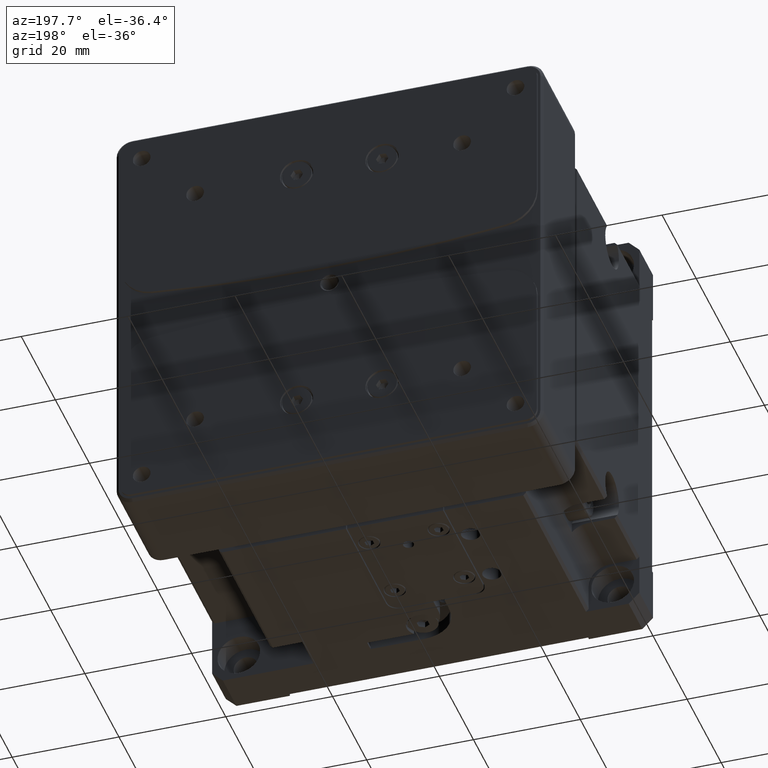
[diagram: clean part render]
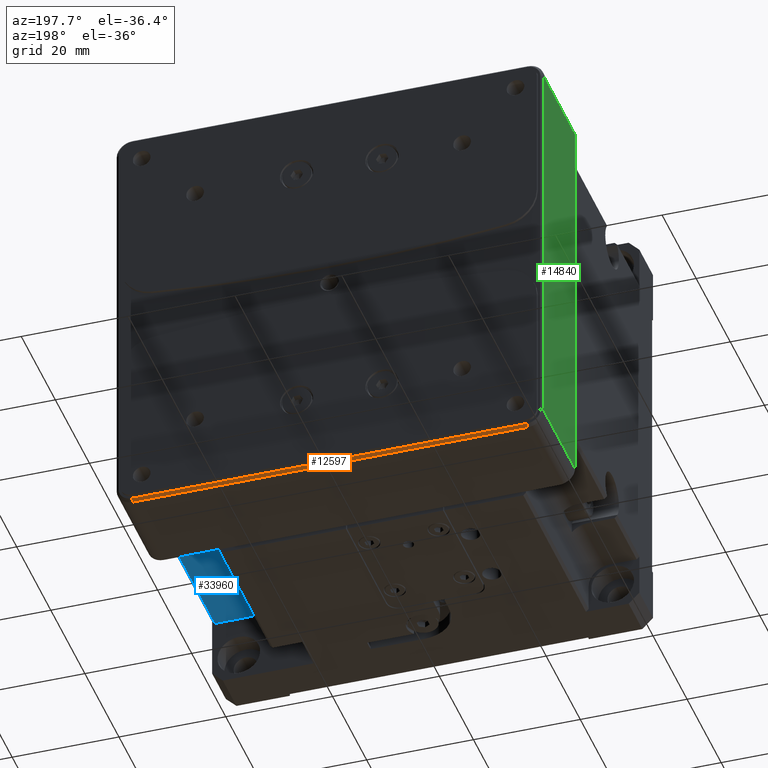
[diagram: same view with three faces highlighted in distinct colors, each labeled with its STEP entity id]
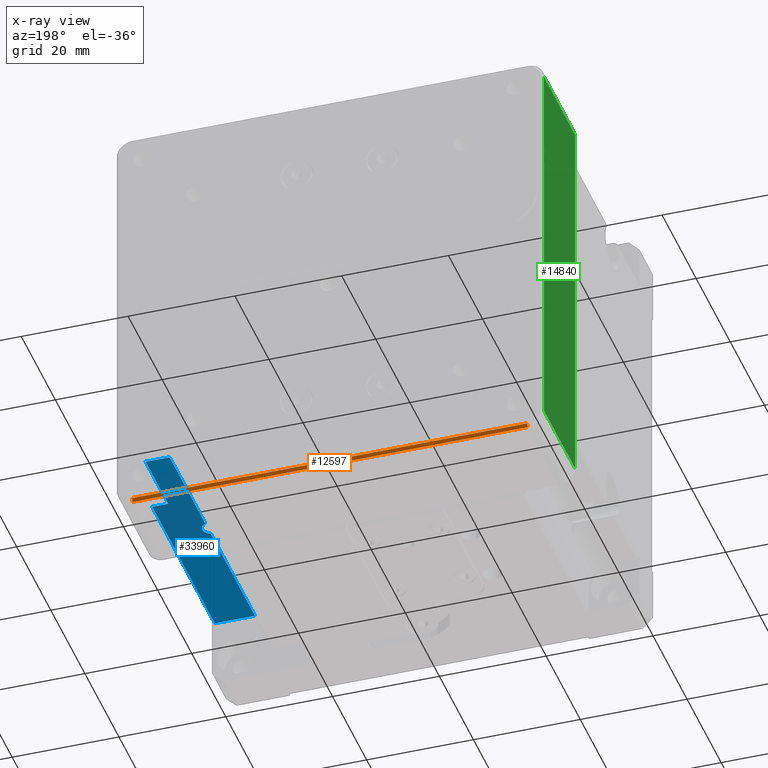
[diagram: x-ray of the same camera — body ghosted, the three highlighted faces saturated]
A machine part, auxiliary view with three faces highlighted in distinct colors.
The next image is the same camera in x-ray (body ghosted, the three faces saturated) — at least one of them is partly hidden behind the body in this view.
Their STEP definitions:

[orange] entity #12597 — the highlighted planar face has unit normal (0, -0.7071, 0.7071).
#762 = EDGE_CURVE ( 'NONE', #11852, #19042, #13240, .T. ) ;
#1415 = CARTESIAN_POINT ( 'NONE',  ( -6.852157730108385656E-15, 64.50000000000000000, -39.49999999999998579 ) ) ;
#2022 = CARTESIAN_POINT ( 'NONE',  ( 39.99999999999998579, 64.00000000000000000, -40.00000000000000000 ) ) ;
#3097 = EDGE_CURVE ( 'NONE', #9895, #35285, #28018, .T. ) ;
#3140 = CARTESIAN_POINT ( 'NONE',  ( -37.00000000000001421, -498896.0000000012224, -499000.0000000000582 ) ) ;
#5284 = DIRECTION ( 'NONE',  ( 0.000000000000000000, -0.7071067811865425767, -0.7071067811865525687 ) ) ;
#8007 = VECTOR ( 'NONE', #13546, 1000.000000000000000 ) ;
#8873 = ORIENTED_EDGE ( 'NONE', *, *, #3097, .F. ) ;
#9113 = ORIENTED_EDGE ( 'NONE', *, *, #762, .F. ) ;
#9895 = VERTEX_POINT ( 'NONE', #10170 ) ;
#10170 = CARTESIAN_POINT ( 'NONE',  ( -37.00000000000001421, 64.49999999999603517, -39.49999999999118216 ) ) ;
#10977 = CARTESIAN_POINT ( 'NONE',  ( 36.99999999999998579, 64.50000000000716227, -39.49999999999118216 ) ) ;
#11852 = VERTEX_POINT ( 'NONE', #17275 ) ;
#12597 = ADVANCED_FACE ( 'NONE', ( #15707 ), #35777, .F. ) ;
#13240 = LINE ( 'NONE', #24709, #32464 ) ;
#13546 = DIRECTION ( 'NONE',  ( -0.000000000000000000, -0.7071067811865483499, -0.7071067811865466846 ) ) ;
#14472 = ORIENTED_EDGE ( 'NONE', *, *, #15410, .T. ) ;
#15410 = EDGE_CURVE ( 'NONE', #9895, #19042, #34113, .T. ) ;
#15707 = FACE_OUTER_BOUND ( 'NONE', #35716, .T. ) ;
#17275 = CARTESIAN_POINT ( 'NONE',  ( 36.99999999999998579, 63.99999999997692157, -40.00000000000512301 ) ) ;
#17778 = VECTOR ( 'NONE', #32191, 1000.000000000000000 ) ;
#19042 = VERTEX_POINT ( 'NONE', #10977 ) ;
#19385 = DIRECTION ( 'NONE',  ( 1.226634733346690929E-16, -0.7071067811865525687, 0.7071067811865425767 ) ) ;
#20400 = AXIS2_PLACEMENT_3D ( 'NONE', #1415, #19385, #5284 ) ;
#20746 = ORIENTED_EDGE ( 'NONE', *, *, #30100, .T. ) ;
#21740 = DIRECTION ( 'NONE',  ( -1.000000000000000000, -0.000000000000000000, 1.734723475976807094E-16 ) ) ;
#24578 = LINE ( 'NONE', #2022, #33531 ) ;
#24709 = CARTESIAN_POINT ( 'NONE',  ( 36.99999999999998579, -498895.9999999988941, -499000.0000000000000 ) ) ;
#28018 = LINE ( 'NONE', #3140, #8007 ) ;
#28635 = DIRECTION ( 'NONE',  ( 0.000000000000000000, 0.7071067811865466846, 0.7071067811865483499 ) ) ;
#30100 = EDGE_CURVE ( 'NONE', #11852, #35285, #24578, .T. ) ;
#32191 = DIRECTION ( 'NONE',  ( 1.000000000000000000, 0.000000000000000000, 0.000000000000000000 ) ) ;
#32464 = VECTOR ( 'NONE', #28635, 1000.000000000000000 ) ;
#32694 = CARTESIAN_POINT ( 'NONE',  ( -37.00000000000001421, 64.00000000000534328, -39.99999999999089795 ) ) ;
#33531 = VECTOR ( 'NONE', #21740, 1000.000000000000000 ) ;
#34113 = LINE ( 'NONE', #36574, #17778 ) ;
#35285 = VERTEX_POINT ( 'NONE', #32694 ) ;
#35716 = EDGE_LOOP ( 'NONE', ( #8873, #14472, #9113, #20746 ) ) ;
#35777 = PLANE ( 'NONE',  #20400 ) ;
#36574 = CARTESIAN_POINT ( 'NONE',  ( 0.000000000000000000, 64.50000000000000000, -39.49999999999384670 ) ) ;

[blue] entity #33960 — the highlighted planar face has unit normal (-0, 0, 1).
#425 = CARTESIAN_POINT ( 'NONE',  ( 39.50000000000004263, 149.0617922072698889, -26.99999999999999645 ) ) ;
#658 = VECTOR ( 'NONE', #23516, 1000.000000000000000 ) ;
#1431 = CIRCLE ( 'NONE', #27825, 1.750000000000001554 ) ;
#1459 = PLANE ( 'NONE',  #24868 ) ;
#1820 = VERTEX_POINT ( 'NONE', #5589 ) ;
#2926 = DIRECTION ( 'NONE',  ( 0.000000000000000000, 1.000000000000000000, -0.000000000000000000 ) ) ;
#2927 = EDGE_CURVE ( 'NONE', #12860, #15254, #7159, .T. ) ;
#3361 = VECTOR ( 'NONE', #8299, 1000.000000000000000 ) ;
#3567 = DIRECTION ( 'NONE',  ( -2.668805347656626678E-16, 0.000000000000000000, 1.000000000000000000 ) ) ;
#3962 = AXIS2_PLACEMENT_3D ( 'NONE', #5636, #11473, #28573 ) ;
#4182 = VECTOR ( 'NONE', #2926, 1000.000000000000000 ) ;
#4377 = EDGE_CURVE ( 'NONE', #8654, #10647, #8157, .T. ) ;
#5589 = CARTESIAN_POINT ( 'NONE',  ( 32.00000000000003553, 8.000000000000005329, -27.00000000000000000 ) ) ;
#5636 = CARTESIAN_POINT ( 'NONE',  ( 31.30000000000000071, 35.50000000000001421, -26.99999999999999645 ) ) ;
#6667 = VERTEX_POINT ( 'NONE', #31321 ) ;
#7001 = VERTEX_POINT ( 'NONE', #19991 ) ;
#7159 = LINE ( 'NONE', #35511, #16409 ) ;
#8157 = CIRCLE ( 'NONE', #3962, 1.750000000000001554 ) ;
#8299 = DIRECTION ( 'NONE',  ( -0.000000000000000000, -1.000000000000000000, 0.000000000000000000 ) ) ;
#8654 = VERTEX_POINT ( 'NONE', #19215 ) ;
#8715 = LINE ( 'NONE', #25826, #25892 ) ;
#8845 = CARTESIAN_POINT ( 'NONE',  ( 27.00000000000004619, 149.0617922072698889, -27.00000000000000000 ) ) ;
#9032 = FACE_OUTER_BOUND ( 'NONE', #27047, .T. ) ;
#10460 = VECTOR ( 'NONE', #28714, 1000.000000000000000 ) ;
#10647 = VERTEX_POINT ( 'NONE', #12685 ) ;
#11158 = DIRECTION ( 'NONE',  ( -1.000000000000000000, 0.000000000000000000, 0.000000000000000000 ) ) ;
#11473 = DIRECTION ( 'NONE',  ( -0.000000000000000000, -0.000000000000000000, -1.000000000000000000 ) ) ;
#11549 = DIRECTION ( 'NONE',  ( 1.000000000000000000, 0.000000000000000000, 0.000000000000000000 ) ) ;
#12254 = EDGE_CURVE ( 'NONE', #15254, #27824, #23229, .T. ) ;
#12685 = CARTESIAN_POINT ( 'NONE',  ( 33.05000000000000426, 35.50000000000001421, -26.99999999999999645 ) ) ;
#12860 = VERTEX_POINT ( 'NONE', #30055 ) ;
#13421 = DIRECTION ( 'NONE',  ( -0.000000000000000000, -0.000000000000000000, -1.000000000000000000 ) ) ;
#14058 = EDGE_CURVE ( 'NONE', #1820, #6667, #8715, .T. ) ;
#14262 = LINE ( 'NONE', #30978, #10460 ) ;
#14511 = CARTESIAN_POINT ( 'NONE',  ( 36.50000000000000000, 57.99999999999999289, -26.99999999999999645 ) ) ;
#15254 = VERTEX_POINT ( 'NONE', #19305 ) ;
#15443 = DIRECTION ( 'NONE',  ( -1.000000000000000000, -0.000000000000000000, -2.668805347656626678E-16 ) ) ;
#16321 = VERTEX_POINT ( 'NONE', #29469 ) ;
#16409 = VECTOR ( 'NONE', #15443, 1000.000000000000000 ) ;
#16616 = CARTESIAN_POINT ( 'NONE',  ( 31.30000000000000071, 35.50000000000001421, -26.99999999999999645 ) ) ;
#16960 = CARTESIAN_POINT ( 'NONE',  ( 32.00000000000003553, 149.0617922072698889, -27.00000000000000000 ) ) ;
#17706 = EDGE_CURVE ( 'NONE', #10647, #7001, #1431, .T. ) ;
#18155 = ORIENTED_EDGE ( 'NONE', *, *, #25789, .F. ) ;
#18720 = EDGE_CURVE ( 'NONE', #7001, #1820, #14262, .T. ) ;
#18900 = VECTOR ( 'NONE', #32968, 1000.000000000000000 ) ;
#19215 = CARTESIAN_POINT ( 'NONE',  ( 32.00000000000004263, 37.10390149323454523, -26.99999999999999645 ) ) ;
#19255 = CARTESIAN_POINT ( 'NONE',  ( 27.00000000000004619, 57.99999999999999289, -27.00000000000000000 ) ) ;
#19305 = CARTESIAN_POINT ( 'NONE',  ( 36.49999999999999289, 44.75000000000001421, -26.99999999999999645 ) ) ;
#19965 = ORIENTED_EDGE ( 'NONE', *, *, #26295, .F. ) ;
#19991 = CARTESIAN_POINT ( 'NONE',  ( 32.00000000000003553, 33.89609850676547609, -26.99999999999999645 ) ) ;
#23229 = LINE ( 'NONE', #31122, #4182 ) ;
#23337 = ORIENTED_EDGE ( 'NONE', *, *, #14058, .F. ) ;
#23516 = DIRECTION ( 'NONE',  ( 0.000000000000000000, 1.000000000000000000, -0.000000000000000000 ) ) ;
#24040 = ORIENTED_EDGE ( 'NONE', *, *, #2927, .F. ) ;
#24868 = AXIS2_PLACEMENT_3D ( 'NONE', #8845, #3567, #28768 ) ;
#25572 = ORIENTED_EDGE ( 'NONE', *, *, #4377, .F. ) ;
#25789 = EDGE_CURVE ( 'NONE', #27824, #16321, #36336, .T. ) ;
#25826 = CARTESIAN_POINT ( 'NONE',  ( 0.000000000000000000, 8.000000000000000000, -27.00000000000000000 ) ) ;
#25892 = VECTOR ( 'NONE', #11549, 1000.000000000000000 ) ;
#26155 = LINE ( 'NONE', #425, #658 ) ;
#26295 = EDGE_CURVE ( 'NONE', #16321, #8654, #30659, .T. ) ;
#27047 = EDGE_LOOP ( 'NONE', ( #23337, #30311, #27669, #25572, #19965, #18155, #30160, #24040, #29675 ) ) ;
#27669 = ORIENTED_EDGE ( 'NONE', *, *, #17706, .F. ) ;
#27824 = VERTEX_POINT ( 'NONE', #14511 ) ;
#27825 = AXIS2_PLACEMENT_3D ( 'NONE', #16616, #13421, #11158 ) ;
#28573 = DIRECTION ( 'NONE',  ( -1.000000000000000000, 0.000000000000000000, 0.000000000000000000 ) ) ;
#28714 = DIRECTION ( 'NONE',  ( -0.000000000000000000, -1.000000000000000000, 0.000000000000000000 ) ) ;
#28768 = DIRECTION ( 'NONE',  ( 1.000000000000000000, 0.000000000000000000, 2.668805347656626678E-16 ) ) ;
#29469 = CARTESIAN_POINT ( 'NONE',  ( 32.00000000000003553, 57.99999999999999289, -26.99999999999999645 ) ) ;
#29675 = ORIENTED_EDGE ( 'NONE', *, *, #36437, .F. ) ;
#30055 = CARTESIAN_POINT ( 'NONE',  ( 39.50000000000004263, 44.75000000000001421, -26.99999999999999645 ) ) ;
#30160 = ORIENTED_EDGE ( 'NONE', *, *, #12254, .F. ) ;
#30311 = ORIENTED_EDGE ( 'NONE', *, *, #18720, .F. ) ;
#30659 = LINE ( 'NONE', #16960, #3361 ) ;
#30978 = CARTESIAN_POINT ( 'NONE',  ( 32.00000000000003553, 149.0617922072698889, -27.00000000000000000 ) ) ;
#31122 = CARTESIAN_POINT ( 'NONE',  ( 36.49999999999999289, 149.0617922072698889, -26.99999999999999645 ) ) ;
#31321 = CARTESIAN_POINT ( 'NONE',  ( 39.50000000000004974, 8.000000000000005329, -26.99999999999999645 ) ) ;
#32968 = DIRECTION ( 'NONE',  ( -1.000000000000000000, -0.000000000000000000, -2.668805347656626678E-16 ) ) ;
#33960 = ADVANCED_FACE ( 'NONE', ( #9032 ), #1459, .F. ) ;
#35511 = CARTESIAN_POINT ( 'NONE',  ( 27.00000000000004619, 44.75000000000001421, -27.00000000000000000 ) ) ;
#36336 = LINE ( 'NONE', #19255, #18900 ) ;
#36437 = EDGE_CURVE ( 'NONE', #6667, #12860, #26155, .T. ) ;

[green] entity #14840 — the highlighted planar face has unit normal (1, 0, -0).
#979 = VERTEX_POINT ( 'NONE', #35338 ) ;
#4244 = VECTOR ( 'NONE', #15983, 1000.000000000000000 ) ;
#4329 = FACE_OUTER_BOUND ( 'NONE', #26169, .T. ) ;
#4424 = DIRECTION ( 'NONE',  ( -0.000000000000000000, 1.000000000000000000, -0.000000000000000000 ) ) ;
#6034 = VECTOR ( 'NONE', #13275, 1000.000000000000000 ) ;
#7699 = DIRECTION ( 'NONE',  ( 1.000000000000000000, 0.000000000000000000, -1.734723475976807094E-16 ) ) ;
#8005 = LINE ( 'NONE', #22645, #6034 ) ;
#8321 = ORIENTED_EDGE ( 'NONE', *, *, #15831, .T. ) ;
#8506 = CARTESIAN_POINT ( 'NONE',  ( -40.00000000000001421, 45.75000000000001421, -36.99999999999998579 ) ) ;
#8796 = ORIENTED_EDGE ( 'NONE', *, *, #25738, .F. ) ;
#11288 = ORIENTED_EDGE ( 'NONE', *, *, #13331, .F. ) ;
#13112 = EDGE_CURVE ( 'NONE', #979, #36219, #16163, .T. ) ;
#13275 = DIRECTION ( 'NONE',  ( 0.000000000000000000, -1.000000000000000000, 0.000000000000000000 ) ) ;
#13331 = EDGE_CURVE ( 'NONE', #36219, #14953, #8005, .T. ) ;
#14142 = LINE ( 'NONE', #17519, #34565 ) ;
#14707 = AXIS2_PLACEMENT_3D ( 'NONE', #36429, #7699, #24802 ) ;
#14840 = ADVANCED_FACE ( 'NONE', ( #4329 ), #30800, .F. ) ;
#14953 = VERTEX_POINT ( 'NONE', #19899 ) ;
#15831 = EDGE_CURVE ( 'NONE', #32220, #14953, #14142, .T. ) ;
#15983 = DIRECTION ( 'NONE',  ( 1.734723475976807094E-16, -0.000000000000000000, 1.000000000000000000 ) ) ;
#16163 = LINE ( 'NONE', #30605, #4244 ) ;
#17519 = CARTESIAN_POINT ( 'NONE',  ( -40.00000000000001421, 45.75000000000000711, 0.000000000000000000 ) ) ;
#19899 = CARTESIAN_POINT ( 'NONE',  ( -40.00000000000000711, 45.75000000000001421, 37.00000000000001421 ) ) ;
#21692 = CARTESIAN_POINT ( 'NONE',  ( -40.00000000000001421, 64.50000000000000000, -36.99999999999998579 ) ) ;
#22645 = CARTESIAN_POINT ( 'NONE',  ( -40.00000000000000000, 64.50000000000000000, 37.00000000000001421 ) ) ;
#24096 = ORIENTED_EDGE ( 'NONE', *, *, #13112, .F. ) ;
#24532 = LINE ( 'NONE', #21692, #33897 ) ;
#24802 = DIRECTION ( 'NONE',  ( -1.734723475976807094E-16, 0.000000000000000000, -1.000000000000000000 ) ) ;
#25738 = EDGE_CURVE ( 'NONE', #32220, #979, #24532, .T. ) ;
#26169 = EDGE_LOOP ( 'NONE', ( #8796, #8321, #11288, #24096 ) ) ;
#28969 = DIRECTION ( 'NONE',  ( 0.000000000000000000, -0.000000000000000000, 1.000000000000000000 ) ) ;
#30605 = CARTESIAN_POINT ( 'NONE',  ( -40.00000000000001421, 64.00000000000000000, -39.99999999999998579 ) ) ;
#30800 = PLANE ( 'NONE',  #14707 ) ;
#32220 = VERTEX_POINT ( 'NONE', #8506 ) ;
#33664 = CARTESIAN_POINT ( 'NONE',  ( -40.00000000000000711, 64.00000000000000000, 37.00000000000001421 ) ) ;
#33897 = VECTOR ( 'NONE', #4424, 1000.000000000000000 ) ;
#34565 = VECTOR ( 'NONE', #28969, 1000.000000000000000 ) ;
#35338 = CARTESIAN_POINT ( 'NONE',  ( -39.99999999999091216, 64.00000000000534328, -36.99999999999999289 ) ) ;
#36219 = VERTEX_POINT ( 'NONE', #33664 ) ;
#36429 = CARTESIAN_POINT ( 'NONE',  ( -40.00000000000001421, 64.50000000000000000, -39.99999999999998579 ) ) ;